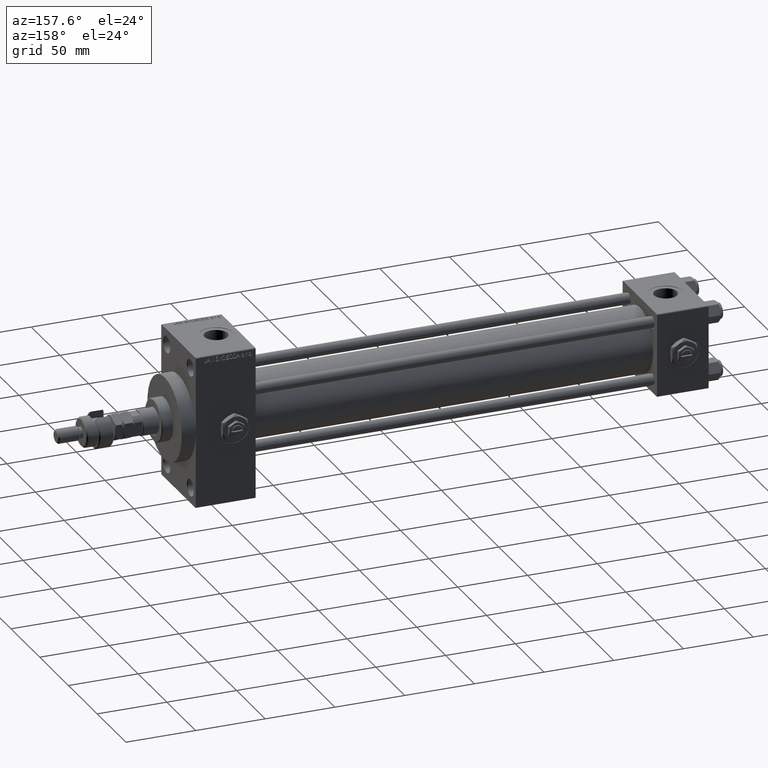
[diagram: clean part render]
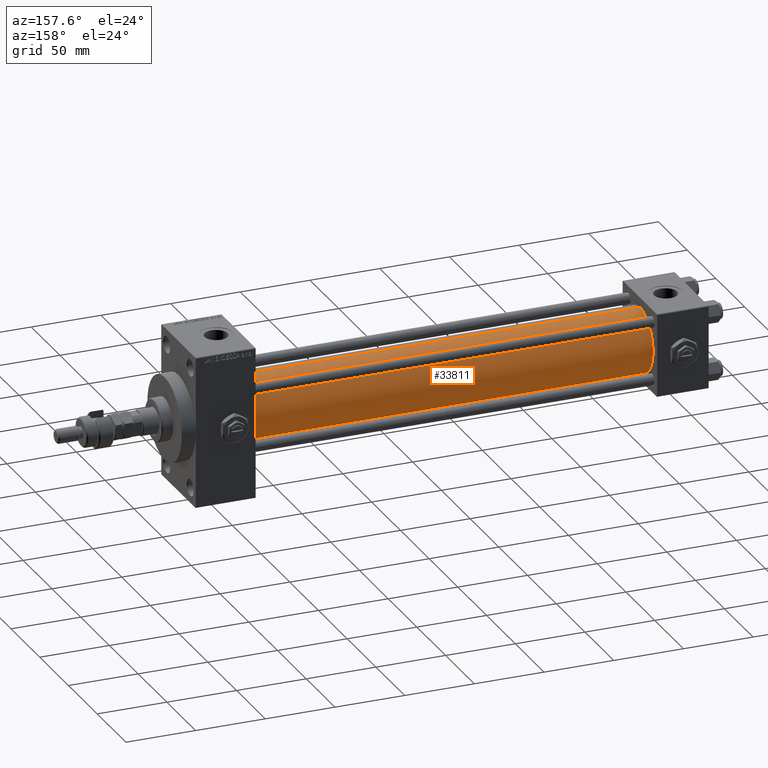
[diagram: same view with one face highlighted and labeled with its STEP entity id]
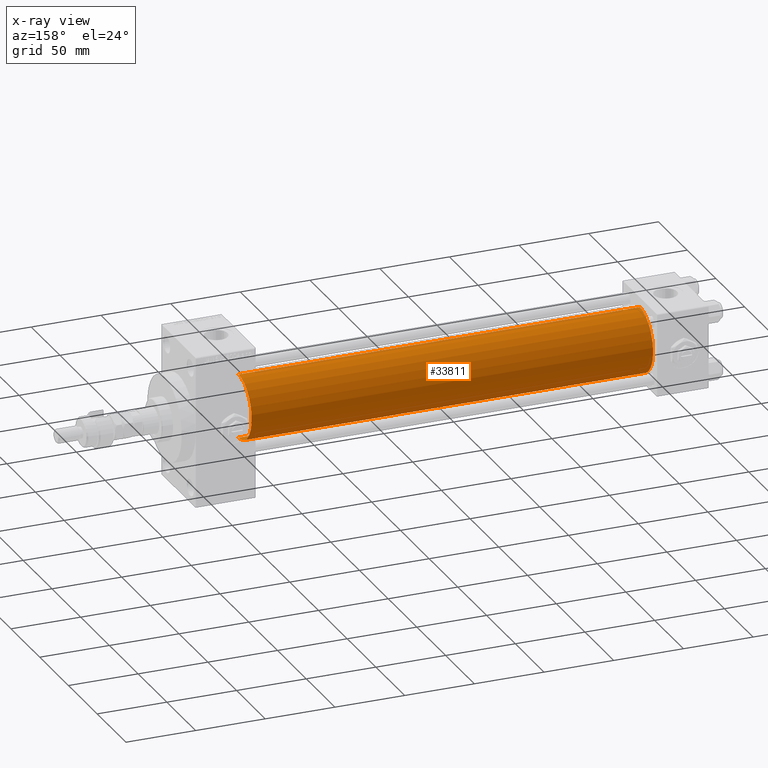
[diagram: x-ray of the same camera — body ghosted, the highlighted face saturated]
A machine part, auxiliary view. The second image highlights one B-rep face of the part: STEP entity #33811.
The next image is the same camera in x-ray: the body ghosted, the highlighted face saturated — about 0% of this face is hidden behind the body in this view.
In plain terms, the highlighted cylindrical surface (edge-blend (fillet) strip) has radius 23 mm, axis along (-1, -0, -0).
Its self-contained STEP definition (entity closure, byte-faithful):
#1645 = AXIS2_PLACEMENT_3D ( 'NONE', #20655, #16694, #21699 ) ;
#1983 = ORIENTED_EDGE ( 'NONE', *, *, #52078, .T. ) ;
#2351 = VERTEX_POINT ( 'NONE', #49997 ) ;
#2817 = ORIENTED_EDGE ( 'NONE', *, *, #9531, .F. ) ;
#2843 = VERTEX_POINT ( 'NONE', #39373 ) ;
#5104 = VERTEX_POINT ( 'NONE', #31773 ) ;
#8169 = DIRECTION ( 'NONE',  ( 0.000000000000000000, 0.000000000000000000, 1.000000000000000000 ) ) ;
#8952 = DIRECTION ( 'NONE',  ( 1.000000000000000000, -0.000000000000000000, 0.000000000000000000 ) ) ;
#9531 = EDGE_CURVE ( 'NONE', #41510, #5104, #10049, .T. ) ;
#9752 = DIRECTION ( 'NONE',  ( -1.000000000000000000, -0.000000000000000000, -0.000000000000000000 ) ) ;
#10049 = CIRCLE ( 'NONE', #1645, 23.00000000000000000 ) ;
#11177 = CIRCLE ( 'NONE', #35570, 23.00000000000000000 ) ;
#11231 = LINE ( 'NONE', #40688, #26888 ) ;
#12346 = EDGE_CURVE ( 'NONE', #5104, #2843, #11231, .T. ) ;
#12994 = VECTOR ( 'NONE', #19414, 1000.000000000000000 ) ;
#16694 = DIRECTION ( 'NONE',  ( 1.000000000000000000, 0.000000000000000000, 0.000000000000000000 ) ) ;
#18163 = CARTESIAN_POINT ( 'NONE',  ( 324.9999999999999432, -2.602085213965210642E-15, 0.000000000000000000 ) ) ;
#18660 = ORIENTED_EDGE ( 'NONE', *, *, #31946, .T. ) ;
#18897 = LINE ( 'NONE', #43386, #12994 ) ;
#19414 = DIRECTION ( 'NONE',  ( -1.000000000000000000, -0.000000000000000000, -0.000000000000000000 ) ) ;
#20655 = CARTESIAN_POINT ( 'NONE',  ( 324.9999999999999432, -2.602085213965210642E-15, 0.000000000000000000 ) ) ;
#20662 = DIRECTION ( 'NONE',  ( -1.000000000000000000, -0.000000000000000000, -0.000000000000000000 ) ) ;
#21335 = CYLINDRICAL_SURFACE ( 'NONE', #39985, 23.00000000000000000 ) ;
#21699 = DIRECTION ( 'NONE',  ( 0.000000000000000000, 0.000000000000000000, -1.000000000000000000 ) ) ;
#26689 = EDGE_LOOP ( 'NONE', ( #2817, #18660, #1983, #51806 ) ) ;
#26888 = VECTOR ( 'NONE', #20662, 1000.000000000000000 ) ;
#29497 = DIRECTION ( 'NONE',  ( 0.000000000000000000, 0.000000000000000000, 1.000000000000000000 ) ) ;
#31773 = CARTESIAN_POINT ( 'NONE',  ( 324.9999999999999432, -2.602085213965210642E-15, 23.00000000000000000 ) ) ;
#31946 = EDGE_CURVE ( 'NONE', #41510, #2351, #18897, .T. ) ;
#33811 = ADVANCED_FACE ( 'NONE', ( #49509 ), #21335, .T. ) ;
#35570 = AXIS2_PLACEMENT_3D ( 'NONE', #36343, #8952, #8169 ) ;
#36343 = CARTESIAN_POINT ( 'NONE',  ( 36.99999999999997868, -2.602085213965210642E-15, 0.000000000000000000 ) ) ;
#39373 = CARTESIAN_POINT ( 'NONE',  ( 36.99999999999997868, -2.602085213965210642E-15, 23.00000000000000000 ) ) ;
#39985 = AXIS2_PLACEMENT_3D ( 'NONE', #18163, #9752, #29497 ) ;
#40688 = CARTESIAN_POINT ( 'NONE',  ( 324.9999999999999432, -2.602085213965210642E-15, 23.00000000000000000 ) ) ;
#41510 = VERTEX_POINT ( 'NONE', #45279 ) ;
#43386 = CARTESIAN_POINT ( 'NONE',  ( 324.9999999999999432, 2.146024240737016609E-16, -23.00000000000000000 ) ) ;
#45279 = CARTESIAN_POINT ( 'NONE',  ( 324.9999999999999432, 2.146024240737016609E-16, -23.00000000000000000 ) ) ;
#49509 = FACE_OUTER_BOUND ( 'NONE', #26689, .T. ) ;
#49997 = CARTESIAN_POINT ( 'NONE',  ( 36.99999999999997868, 2.146024240737016609E-16, -23.00000000000000000 ) ) ;
#51806 = ORIENTED_EDGE ( 'NONE', *, *, #12346, .F. ) ;
#52078 = EDGE_CURVE ( 'NONE', #2351, #2843, #11177, .T. ) ;